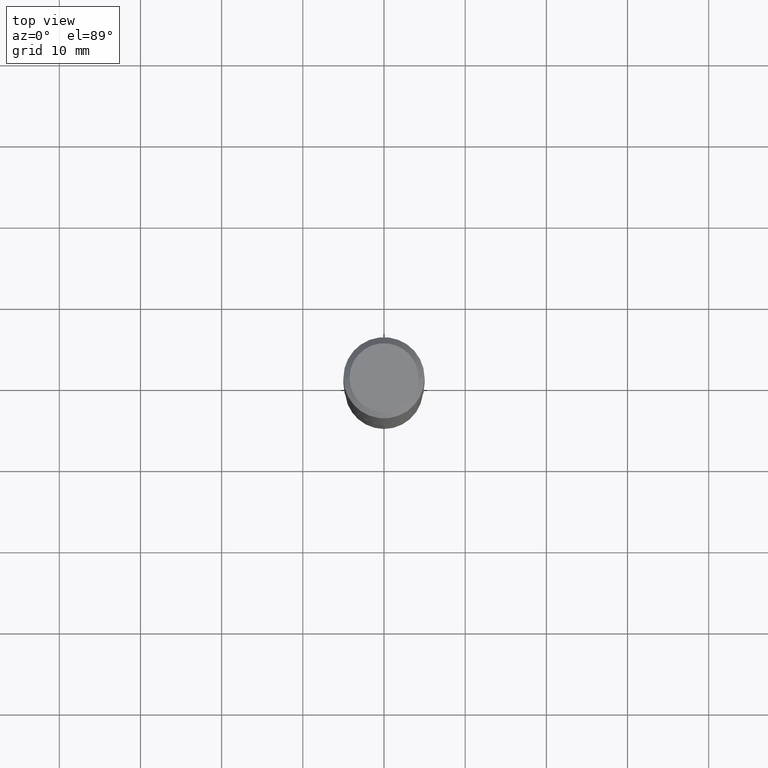
[diagram: clean part render]
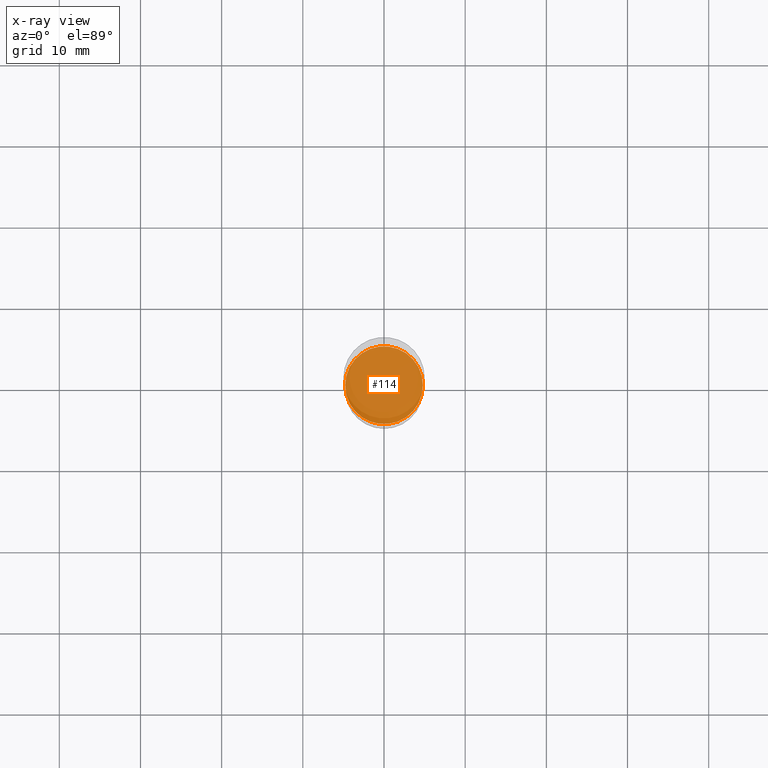
[diagram: x-ray — body ghosted, one internal face saturated and labeled with its STEP entity id]
A machine part, top view, then the same camera in x-ray: the body is ghosted and one INTERNAL B-rep face — a face not visible from any outside direction — is saturated and labeled: STEP entity #114.
In plain terms, the highlighted planar face has unit normal (-0, 0, 1).
Its self-contained STEP definition (entity closure, byte-faithful):
#6 = AXIS2_PLACEMENT_3D ( 'NONE', #312, #175, #246 ) ;
#33 = EDGE_CURVE ( 'NONE', #476, #369, #55, .T. ) ;
#55 = CIRCLE ( 'NONE', #6, 0.1884999999999999731 ) ;
#68 = DIRECTION ( 'NONE',  ( 1.000000000000000000, -6.982962677686269866E-15, 0.000000000000000000 ) ) ;
#77 = AXIS2_PLACEMENT_3D ( 'NONE', #127, #92, #394 ) ;
#78 = EDGE_LOOP ( 'NONE', ( #252, #142 ) ) ;
#92 = DIRECTION ( 'NONE',  ( -2.438088387897960049E-29, 3.491481338843145188E-15, 1.000000000000000000 ) ) ;
#114 = ADVANCED_FACE ( 'NONE', ( #401 ), #462, .F. ) ;
#127 = CARTESIAN_POINT ( 'NONE',  ( 5.198822135068982087E-29, -7.422540178246643119E-15, -2.125899999999999679 ) ) ;
#142 = ORIENTED_EDGE ( 'NONE', *, *, #33, .F. ) ;
#175 = DIRECTION ( 'NONE',  ( -2.445468806185136597E-29, 3.491481338843145583E-15, 1.000000000000000000 ) ) ;
#199 = CARTESIAN_POINT ( 'NONE',  ( 5.198822135068982087E-29, -7.422540178246643119E-15, -2.125899999999999679 ) ) ;
#228 = CARTESIAN_POINT ( 'NONE',  ( -0.1884999999999999731, -6.080517894164743061E-15, -2.125899999999999679 ) ) ;
#246 = DIRECTION ( 'NONE',  ( 1.000000000000000000, -6.982962677686269866E-15, 0.000000000000000000 ) ) ;
#252 = ORIENTED_EDGE ( 'NONE', *, *, #473, .F. ) ;
#312 = CARTESIAN_POINT ( 'NONE',  ( 5.198822135068982087E-29, -7.422540178246643119E-15, -2.125899999999999679 ) ) ;
#333 = AXIS2_PLACEMENT_3D ( 'NONE', #199, #411, #68 ) ;
#351 = CIRCLE ( 'NONE', #333, 0.1884999999999999731 ) ;
#369 = VERTEX_POINT ( 'NONE', #413 ) ;
#394 = DIRECTION ( 'NONE',  ( 1.000000000000000000, -6.982962677686265922E-15, 4.876176775795935793E-29 ) ) ;
#401 = FACE_OUTER_BOUND ( 'NONE', #78, .T. ) ;
#411 = DIRECTION ( 'NONE',  ( -2.445468806185136597E-29, 3.491481338843145583E-15, 1.000000000000000000 ) ) ;
#413 = CARTESIAN_POINT ( 'NONE',  ( 0.1884999999999999731, -8.738828642990504141E-15, -2.125899999999999679 ) ) ;
#462 = PLANE ( 'NONE',  #77 ) ;
#473 = EDGE_CURVE ( 'NONE', #369, #476, #351, .T. ) ;
#476 = VERTEX_POINT ( 'NONE', #228 ) ;